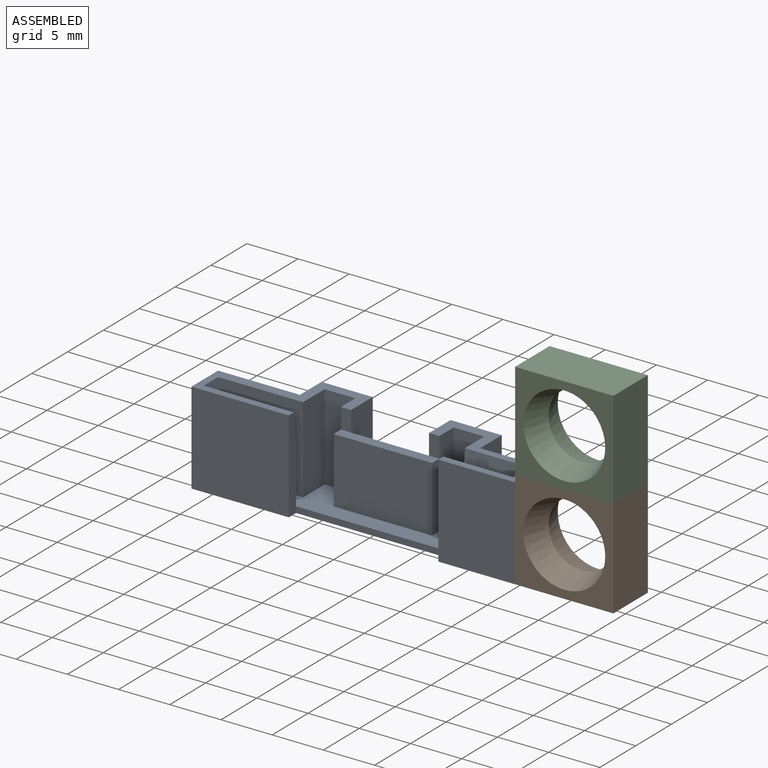
[diagram: assembled view]
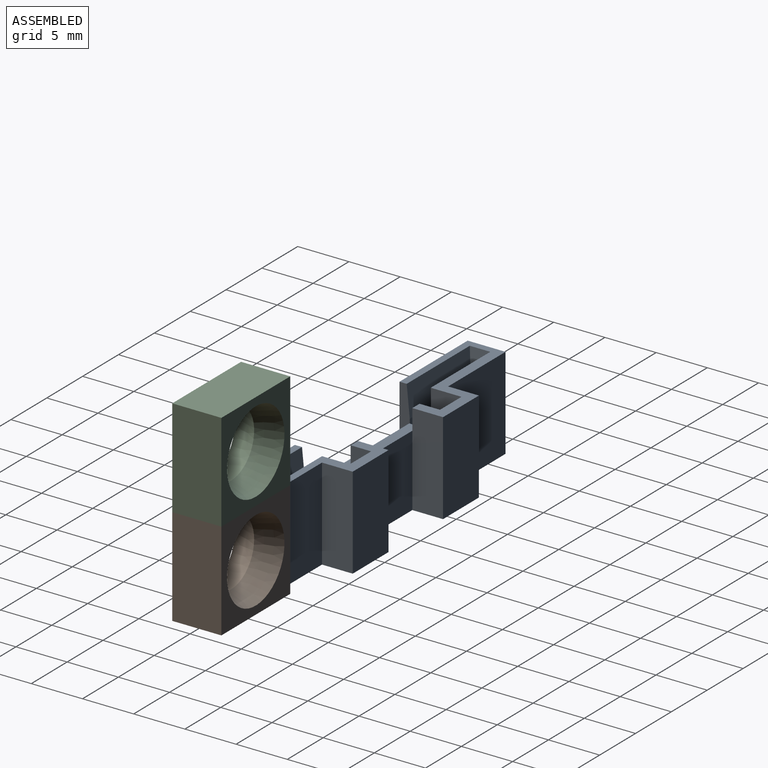
[diagram: assembled view, second angle]
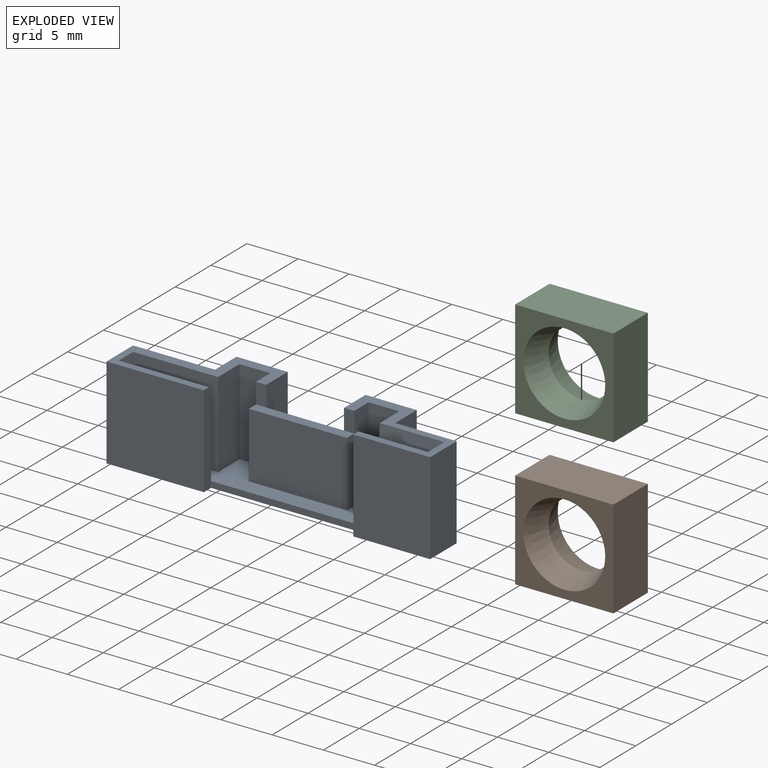
[diagram: exploded view]
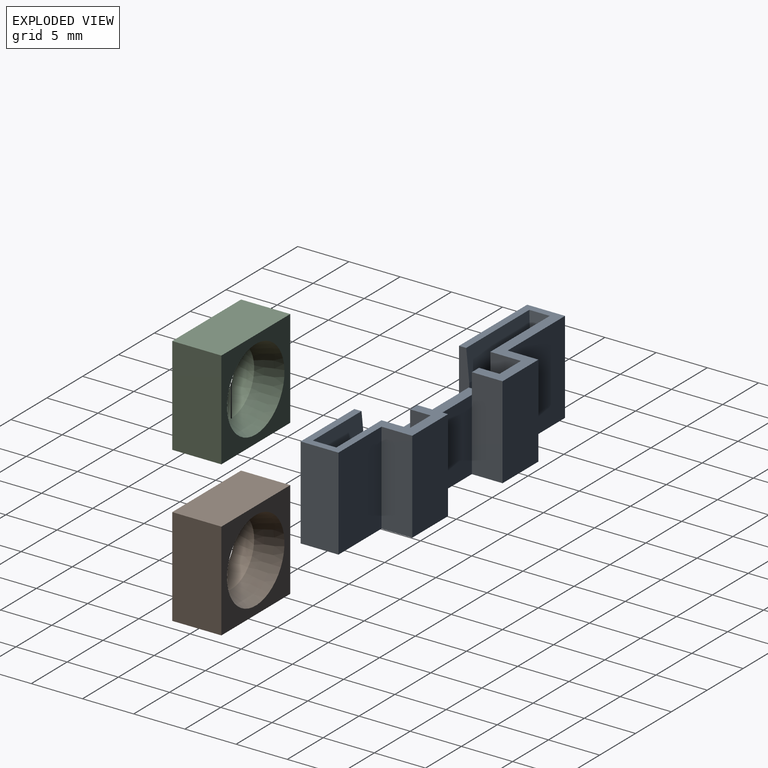
[diagram: exploded view, second angle]
ASSEMBLY  parts=3 mates=2
PART A: 41 faces, bbox 31.6x6.7x9 mm
  f0: plane 7.6x7mm, normal (0,-1,0), area 53.2mm2, adj f8,f23,f24,f35
  f1: plane 8.4x3mm, normal (1,0,0), area 23.2mm2, adj f2,f4,f7,f13,f34,f35
  f2: plane 9.6x6.4mm, normal (0,1,0), area 61.4mm2, adj f1,f3,f7,f35
  f3: plane 8.4x3mm, normal (-1,0,0), area 23.2mm2, adj f2,f5,f7,f12,f33,f35
  f4: plane 13x6.7mm, normal (0,0,1), area 26.1mm2, adj f1,f13,f24,f25,f26,f27,f28,f29
  f5: plane 11x6.7mm, normal (0,0,1), area 20.8mm2, adj f3,f12,f15,f17,f18,f19,f20,f21
  f6: plane 14.6x0.6mm, normal (0,1,0), area 8.8mm2, adj f7,f8,f17,f30
  f7: plane 29.6x4.7mm, normal (0,0,1), area 68.3mm2, adj f1,f2,f3,f6,f9,f10,f11,f12
  f8: plane 31.6x6.7mm, normal (0,0,-1), area 132.3mm2, adj f0,f6,f17,f18,f19,f20,f21,f22
  f9: plane 6.5x5.4mm, normal (0,-1,0), area 35.1mm2, adj f7,f11,f17,f36
  f10: plane 8.5x5.4mm, normal (0,-1,0), area 45.9mm2, adj f7,f14,f30,f39
  f11: plane 5.4x1.7mm, normal (1,0,0), area 9.2mm2, adj f7,f9,f16,f37
  f12: plane 8.4x3mm, normal (0,1,0), area 25.2mm2, adj f3,f5,f7,f15
  f13: plane 8.4x3mm, normal (0,1,0), area 25.2mm2, adj f1,f4,f7,f32
  f14: plane 5.4x1.7mm, normal (-1,0,0), area 9.2mm2, adj f7,f10,f31,f40
  f15: plane 8.4x3mm, normal (1,0,0), area 24.8mm2, adj f5,f7,f12,f16,f38
  f16: plane 6x5.4mm, normal (0,1,0), area 32.4mm2, adj f7,f11,f15,f38
  f17: plane 9x1mm, normal (1,0,0), area 8.6mm2, adj f5,f6,f8,f9,f18,f36
  f18: plane 9x7.5mm, normal (0,1,0), area 67.5mm2, adj f5,f8,f17,f19
  f19: plane 9x3.7mm, normal (-1,0,0), area 33.3mm2, adj f5,f8,f18,f20
  f20: plane 9x6mm, normal (0,-1,0), area 54mm2, adj f5,f8,f19,f21
  f21: plane 9x3mm, normal (-1,0,0), area 27mm2, adj f5,f8,f20,f22
  f22: plane 9x5mm, normal (0,-1,0), area 45mm2, adj f5,f8,f21,f23
  f23: plane 9x3mm, normal (1,0,0), area 27mm2, adj f0,f5,f8,f22,f33
  f24: plane 9x3mm, normal (-1,0,0), area 27mm2, adj f0,f4,f8,f25,f34
  f25: plane 9x5mm, normal (0,-1,0), area 45mm2, adj f4,f8,f24,f26
  f26: plane 9x3mm, normal (1,0,0), area 27mm2, adj f4,f8,f25,f27
  f27: plane 9x8mm, normal (0,-1,0), area 72mm2, adj f4,f8,f26,f28
  f28: plane 9x3.7mm, normal (1,0,0), area 33.3mm2, adj f4,f8,f27,f29
  f29: plane 9.5x9mm, normal (0,1,0), area 85.5mm2, adj f4,f8,f28,f30
  f30: plane 9x1mm, normal (-1,0,0), area 8.5mm2, adj f4,f6,f8,f10,f29,f39
  f31: plane 8.4x8.3mm, normal (0,1,0), area 67.7mm2, adj f4,f7,f14,f32,f40
  f32: plane 8.4x3mm, normal (-1,0,0), area 25.2mm2, adj f4,f7,f13,f31
  f33: plane 2x1mm, normal (0,1,0), area 2mm2, adj f3,f5,f23,f35
  f34: plane 2x1mm, normal (0,1,0), area 2mm2, adj f1,f4,f24,f35
  f35: plane 9.6x1mm, normal (0,0,1), area 9.6mm2, adj f0,f1,f2,f3,f33,f34
  f36: plane 6.8x3mm, normal (0,-1,0.1), area 20mm2, adj f5,f9,f17,f37
  f37: plane 3x2.3mm, normal (1,0,0.1), area 6mm2, adj f5,f11,f36,f38
  f38: plane 6.3x3mm, normal (0,1,0.1), area 18.5mm2, adj f5,f15,f16,f37
  f39: plane 8.8x3mm, normal (0,-1,0.1), area 26.1mm2, adj f4,f10,f30,f40
  f40: plane 3x2mm, normal (-1,0,0.1), area 5.6mm2, adj f4,f14,f31,f39
PART B: 8 faces, bbox 9.6x9.6x4.8 mm
  f0: plane 9.6x9.6mm, normal (0,0,1), area 41.9mm2, adj f2,f4,f5,f6,f7
  f1: plane 9.6x9.6mm, normal (0,0,-1), area 41.9mm2, adj f3,f4,f5,f6,f7
  f2: cone r=3.2mm half-angle=18.4deg, axis (0,0,1), area 57.2mm2, adj f0,f3
  f3: cone r=4mm half-angle=18.4deg, axis (0,0,-1), area 57.2mm2, adj f1,f2
  f4: plane 9.6x4.8mm, normal (0,1,0), area 46.1mm2, adj f0,f1,f5,f6
  f5: plane 9.6x4.8mm, normal (1,0,0), area 46.1mm2, adj f0,f1,f4,f7
  f6: plane 9.6x4.8mm, normal (-1,0,0), area 46.1mm2, adj f0,f1,f4,f7
  f7: plane 9.6x4.8mm, normal (0,-1,0), area 46.1mm2, adj f0,f1,f5,f6
PART C: same geometry as B
PLACE A rot(axis=(0,0,1),180deg) t=(-5.38,10.13,0.25)mm
PLACE B rot(axis=(1,0,0),90deg) t=(15.22,3.08,-10.95)mm
PLACE C rot(axis=(0.58,0.58,-0.58),120deg) t=(-0.78,3.08,14.65)mm
MATE fastened C.f5 <-> B.f4  axis (0,0,-1) through (15.22,0.68,9.85)mm
MATE fastened A.f19 <-> B.f6  axis (1,0,0) through (10.42,-1.72,0.25)mm
